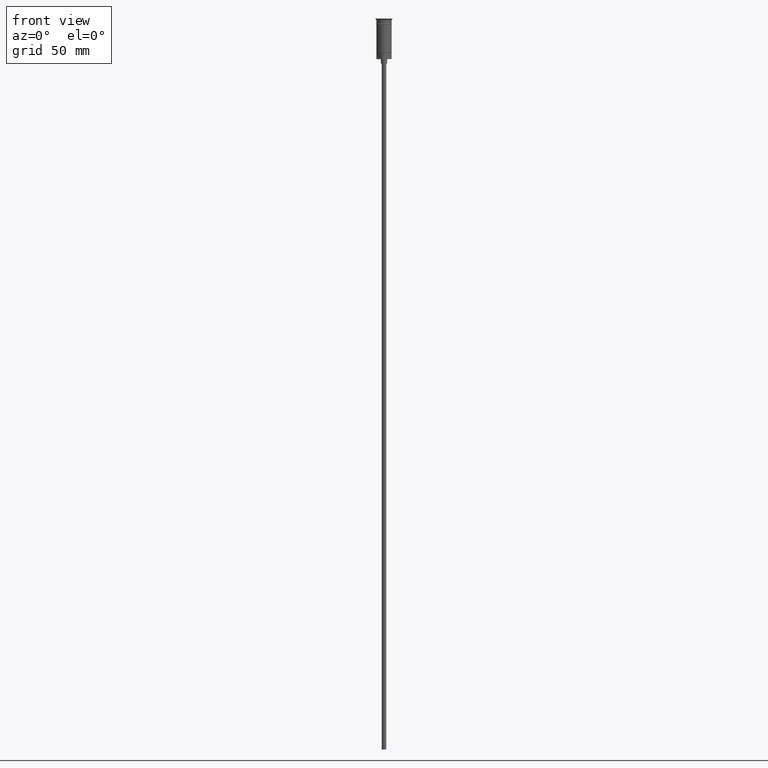
[diagram: clean part render]
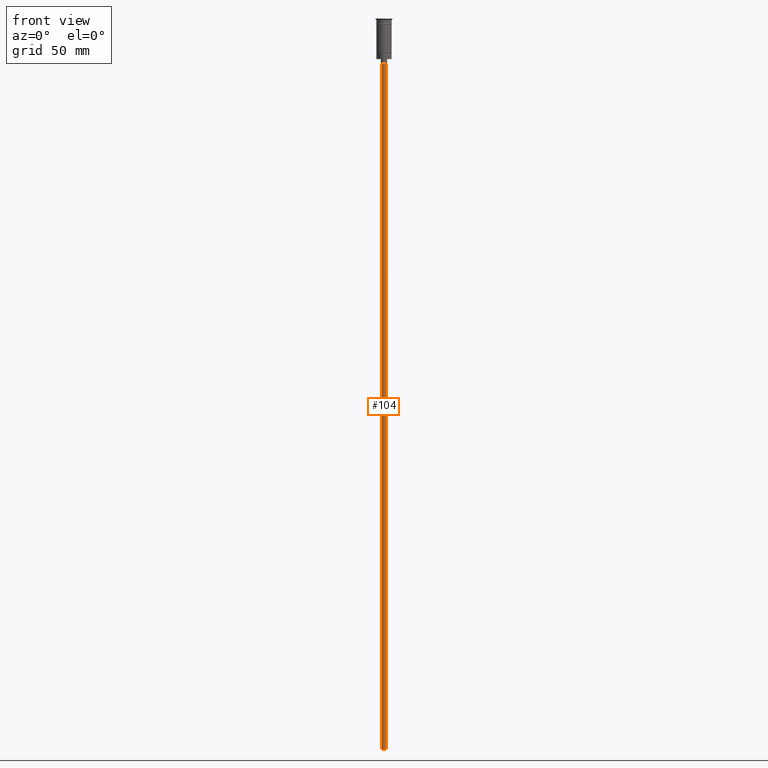
[diagram: same view with one face highlighted and labeled with its STEP entity id]
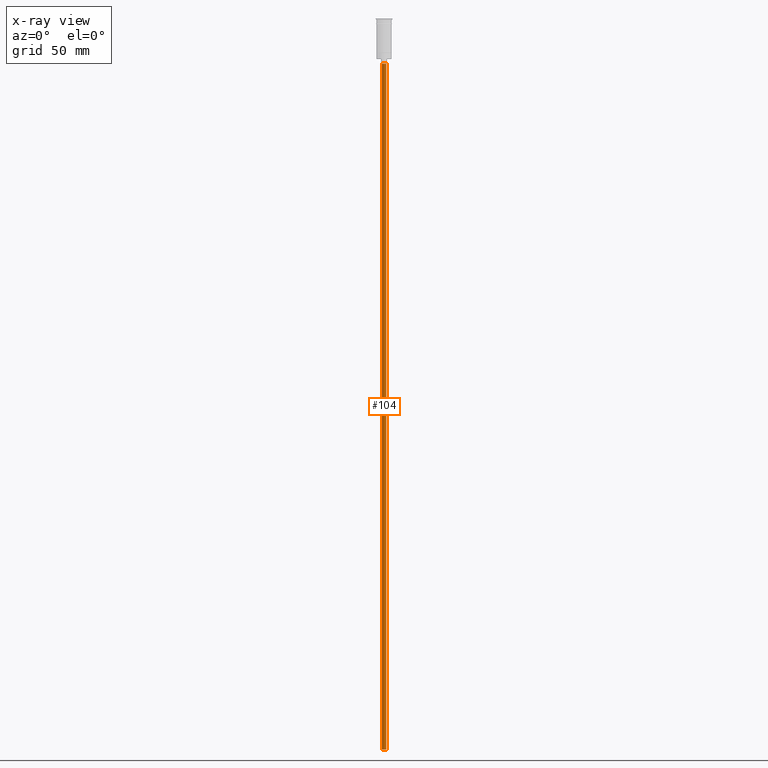
[diagram: x-ray of the same camera — body ghosted, the highlighted face saturated]
A machine part, front view. The second image highlights one B-rep face of the part: STEP entity #104.
The next image is the same camera in x-ray: the body ghosted, the highlighted face saturated — about 0% of this face is hidden behind the body in this view.
In plain terms, the highlighted cylindrical surface (edge-blend (fillet) strip) has radius 1.5 mm, axis along (-0, -0, 1).
Its self-contained STEP definition (entity closure, byte-faithful):
#7 = VERTEX_POINT ( 'NONE', #1494 ) ;
#12 = DIRECTION ( 'NONE',  ( -1.000000000000000000, 0.000000000000000000, 0.000000000000000000 ) ) ;
#104 = ADVANCED_FACE ( 'NONE', ( #915 ), #1376, .T. ) ;
#111 = ORIENTED_EDGE ( 'NONE', *, *, #1427, .F. ) ;
#128 = VERTEX_POINT ( 'NONE', #1255 ) ;
#140 = DIRECTION ( 'NONE',  ( 1.000000000000000000, 0.000000000000000000, 0.000000000000000000 ) ) ;
#143 = VECTOR ( 'NONE', #539, 1000.000000000000000 ) ;
#157 = DIRECTION ( 'NONE',  ( -0.000000000000000000, -0.000000000000000000, 1.000000000000000000 ) ) ;
#223 = CIRCLE ( 'NONE', #939, 1.500000000000000222 ) ;
#305 = CARTESIAN_POINT ( 'NONE',  ( 1.500000000000000222, 0.000000000000000000, -476.5000000000000568 ) ) ;
#308 = CARTESIAN_POINT ( 'NONE',  ( 1.500000000000000222, 0.000000000000000000, -476.5000000000000568 ) ) ;
#413 = CARTESIAN_POINT ( 'NONE',  ( 0.000000000000000000, 0.000000000000000000, -476.5000000000000568 ) ) ;
#464 = VERTEX_POINT ( 'NONE', #1089 ) ;
#514 = EDGE_CURVE ( 'NONE', #128, #464, #223, .T. ) ;
#523 = ORIENTED_EDGE ( 'NONE', *, *, #919, .T. ) ;
#526 = CARTESIAN_POINT ( 'NONE',  ( 0.000000000000000000, 0.000000000000000000, -29.50000000000000000 ) ) ;
#539 = DIRECTION ( 'NONE',  ( -0.000000000000000000, -0.000000000000000000, 1.000000000000000000 ) ) ;
#587 = AXIS2_PLACEMENT_3D ( 'NONE', #413, #1140, #12 ) ;
#711 = DIRECTION ( 'NONE',  ( -0.000000000000000000, -0.000000000000000000, 1.000000000000000000 ) ) ;
#725 = VERTEX_POINT ( 'NONE', #305 ) ;
#759 = DIRECTION ( 'NONE',  ( 0.000000000000000000, 0.000000000000000000, -1.000000000000000000 ) ) ;
#786 = CARTESIAN_POINT ( 'NONE',  ( 0.000000000000000000, 0.000000000000000000, -476.5000000000000568 ) ) ;
#804 = LINE ( 'NONE', #308, #887 ) ;
#872 = LINE ( 'NONE', #878, #143 ) ;
#878 = CARTESIAN_POINT ( 'NONE',  ( -1.500000000000000222, 1.836970198721030181E-16, -476.5000000000000568 ) ) ;
#884 = ORIENTED_EDGE ( 'NONE', *, *, #514, .T. ) ;
#887 = VECTOR ( 'NONE', #711, 1000.000000000000000 ) ;
#915 = FACE_OUTER_BOUND ( 'NONE', #1183, .T. ) ;
#919 = EDGE_CURVE ( 'NONE', #725, #128, #804, .T. ) ;
#939 = AXIS2_PLACEMENT_3D ( 'NONE', #526, #759, #1393 ) ;
#967 = ORIENTED_EDGE ( 'NONE', *, *, #1527, .F. ) ;
#1089 = CARTESIAN_POINT ( 'NONE',  ( -1.500000000000000222, 1.836970198721030181E-16, -29.50000000000000000 ) ) ;
#1140 = DIRECTION ( 'NONE',  ( 0.000000000000000000, 0.000000000000000000, -1.000000000000000000 ) ) ;
#1183 = EDGE_LOOP ( 'NONE', ( #967, #111, #523, #884 ) ) ;
#1207 = CIRCLE ( 'NONE', #587, 1.500000000000000222 ) ;
#1255 = CARTESIAN_POINT ( 'NONE',  ( 1.500000000000000222, 0.000000000000000000, -29.50000000000000000 ) ) ;
#1374 = AXIS2_PLACEMENT_3D ( 'NONE', #786, #157, #140 ) ;
#1376 = CYLINDRICAL_SURFACE ( 'NONE', #1374, 1.500000000000000222 ) ;
#1393 = DIRECTION ( 'NONE',  ( -1.000000000000000000, 0.000000000000000000, 0.000000000000000000 ) ) ;
#1427 = EDGE_CURVE ( 'NONE', #725, #7, #1207, .T. ) ;
#1494 = CARTESIAN_POINT ( 'NONE',  ( -1.500000000000000222, 1.836970198721030181E-16, -476.5000000000000568 ) ) ;
#1527 = EDGE_CURVE ( 'NONE', #7, #464, #872, .T. ) ;